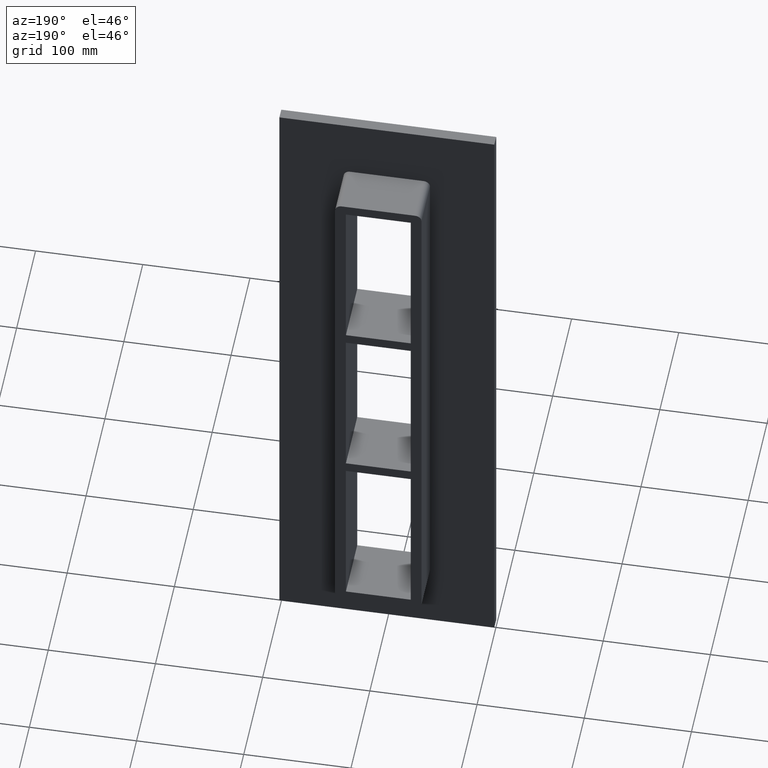
[diagram: clean part render]
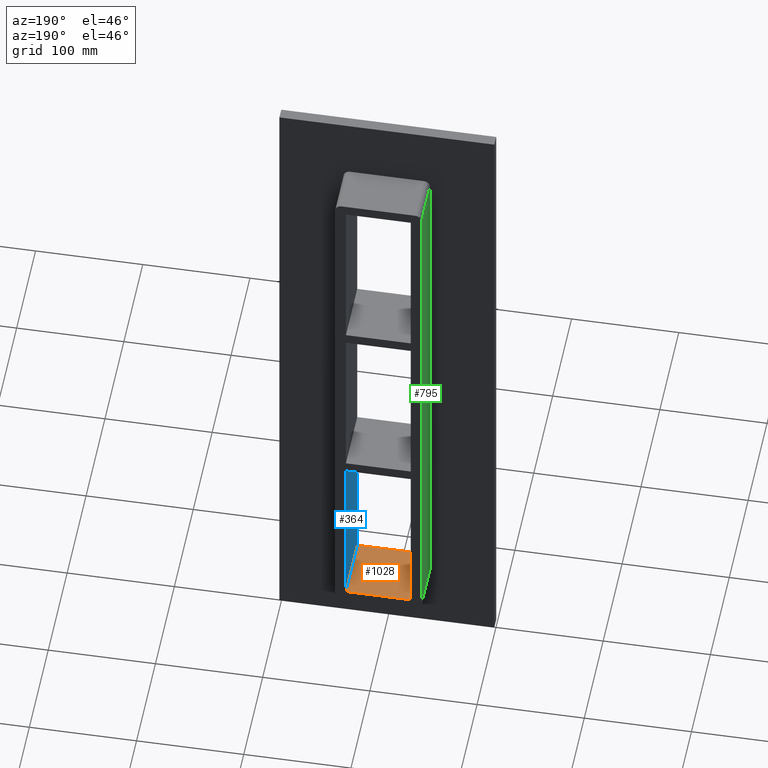
[diagram: same view with three faces highlighted in distinct colors, each labeled with its STEP entity id]
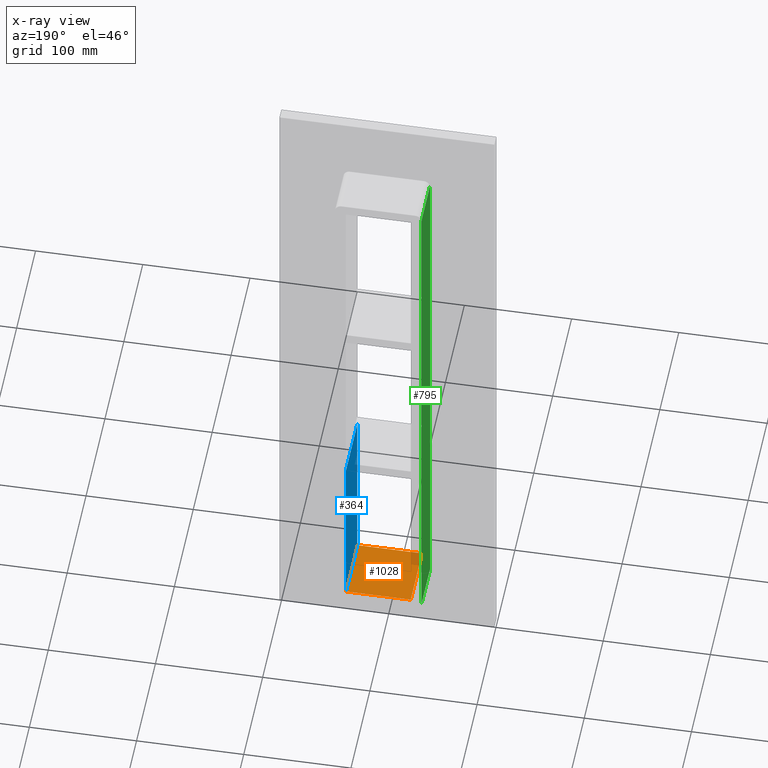
[diagram: x-ray of the same camera — body ghosted, the three highlighted faces saturated]
A machine part, auxiliary view with three faces highlighted in distinct colors.
The next image is the same camera in x-ray (body ghosted, the three faces saturated) — at least one of them is partly hidden behind the body in this view.
Their STEP definitions:

[orange] entity #1028 — the highlighted planar face has unit normal (0, 0, -1).
#340=CARTESIAN_POINT('',(30.249999999999986,55.0,-249.24999999999997));
#341=VERTEX_POINT('',#340);
#348=CARTESIAN_POINT('',(30.249999999999986,-5.0,-249.24999999999997));
#349=VERTEX_POINT('',#348);
#350=CARTESIAN_POINT('',(30.249999999999986,55.0,-249.24999999999997));
#351=DIRECTION('',(0.0,-1.0,0.0));
#352=VECTOR('',#351,60.0);
#353=LINE('',#350,#352);
#354=EDGE_CURVE('',#341,#349,#353,.T.);
#659=CARTESIAN_POINT('',(-30.250000000000021,-5.0,-249.24999999999997));
#660=VERTEX_POINT('',#659);
#667=CARTESIAN_POINT('',(-30.250000000000021,55.0,-249.24999999999997));
#668=VERTEX_POINT('',#667);
#669=CARTESIAN_POINT('',(-30.250000000000021,-5.0,-249.24999999999997));
#670=DIRECTION('',(0.0,1.0,0.0));
#671=VECTOR('',#670,60.0);
#672=LINE('',#669,#671);
#673=EDGE_CURVE('',#660,#668,#672,.T.);
#1007=CARTESIAN_POINT('',(30.249999999999986,0.0,-249.24999999999997));
#1008=DIRECTION('',(0.0,0.0,-1.0));
#1009=DIRECTION('',(-1.0,0.0,0.0));
#1010=AXIS2_PLACEMENT_3D('',#1007,#1008,#1009);
#1011=PLANE('',#1010);
#1012=ORIENTED_EDGE('',*,*,#673,.F.);
#1013=CARTESIAN_POINT('',(30.249999999999986,-5.0,-249.24999999999997));
#1014=DIRECTION('',(-1.0,0.0,0.0));
#1015=VECTOR('',#1014,60.500000000000007);
#1016=LINE('',#1013,#1015);
#1017=EDGE_CURVE('',#349,#660,#1016,.T.);
#1018=ORIENTED_EDGE('',*,*,#1017,.F.);
#1019=ORIENTED_EDGE('',*,*,#354,.F.);
#1020=CARTESIAN_POINT('',(-30.250000000000021,55.0,-249.24999999999997));
#1021=DIRECTION('',(1.0,0.0,0.0));
#1022=VECTOR('',#1021,60.500000000000007);
#1023=LINE('',#1020,#1022);
#1024=EDGE_CURVE('',#668,#341,#1023,.T.);
#1025=ORIENTED_EDGE('',*,*,#1024,.F.);
#1026=EDGE_LOOP('',(#1012,#1018,#1019,#1025));
#1027=FACE_OUTER_BOUND('',#1026,.T.);
#1028=ADVANCED_FACE('',(#1027),#1011,.F.);

[blue] entity #364 — the highlighted planar face has unit normal (1, 0, 0).
#246=CARTESIAN_POINT('',(30.249999999999986,-5.0,-89.749999999999943));
#247=VERTEX_POINT('',#246);
#264=CARTESIAN_POINT('',(30.249999999999986,55.0,-89.749999999999943));
#265=VERTEX_POINT('',#264);
#272=CARTESIAN_POINT('',(30.249999999999986,-5.0,-89.749999999999943));
#273=DIRECTION('',(0.0,1.0,0.0));
#274=VECTOR('',#273,60.0);
#275=LINE('',#272,#274);
#276=EDGE_CURVE('',#247,#265,#275,.T.);
#334=CARTESIAN_POINT('',(30.249999999999986,0.0,249.25000000000006));
#335=DIRECTION('',(1.0,0.0,0.0));
#336=DIRECTION('',(0.0,0.0,-1.0));
#337=AXIS2_PLACEMENT_3D('',#334,#335,#336);
#338=PLANE('',#337);
#339=ORIENTED_EDGE('',*,*,#276,.T.);
#340=CARTESIAN_POINT('',(30.249999999999986,55.0,-249.24999999999997));
#341=VERTEX_POINT('',#340);
#342=CARTESIAN_POINT('',(30.249999999999986,55.0,-249.24999999999994));
#343=DIRECTION('',(0.0,0.0,1.0));
#344=VECTOR('',#343,159.5);
#345=LINE('',#342,#344);
#346=EDGE_CURVE('',#341,#265,#345,.T.);
#347=ORIENTED_EDGE('',*,*,#346,.F.);
#348=CARTESIAN_POINT('',(30.249999999999986,-5.0,-249.24999999999997));
#349=VERTEX_POINT('',#348);
#350=CARTESIAN_POINT('',(30.249999999999986,55.0,-249.24999999999997));
#351=DIRECTION('',(0.0,-1.0,0.0));
#352=VECTOR('',#351,60.0);
#353=LINE('',#350,#352);
#354=EDGE_CURVE('',#341,#349,#353,.T.);
#355=ORIENTED_EDGE('',*,*,#354,.T.);
#356=CARTESIAN_POINT('',(30.249999999999986,-5.0,-89.749999999999943));
#357=DIRECTION('',(0.0,0.0,-1.0));
#358=VECTOR('',#357,159.5);
#359=LINE('',#356,#358);
#360=EDGE_CURVE('',#247,#349,#359,.T.);
#361=ORIENTED_EDGE('',*,*,#360,.F.);
#362=EDGE_LOOP('',(#339,#347,#355,#361));
#363=FACE_OUTER_BOUND('',#362,.T.);
#364=ADVANCED_FACE('',(#363),#338,.F.);

[green] entity #795 — the highlighted planar face has unit normal (-1, 0, 0).
#423=CARTESIAN_POINT('',(-40.250000000000021,10.0,253.25000000000003));
#424=VERTEX_POINT('',#423);
#432=CARTESIAN_POINT('',(-40.250000000000021,10.0,-253.24999999999989));
#433=VERTEX_POINT('',#432);
#434=CARTESIAN_POINT('',(-40.250000000000021,10.0,-253.24999999999989));
#435=DIRECTION('',(0.0,0.0,1.0));
#436=VECTOR('',#435,506.49999999999994);
#437=LINE('',#434,#436);
#438=EDGE_CURVE('',#433,#424,#437,.T.);
#722=CARTESIAN_POINT('',(-40.250000000000021,55.0,-253.24999999999989));
#723=VERTEX_POINT('',#722);
#724=CARTESIAN_POINT('',(-40.250000000000021,10.0,-253.24999999999989));
#725=DIRECTION('',(0.0,1.0,0.0));
#726=VECTOR('',#725,45.0);
#727=LINE('',#724,#726);
#728=EDGE_CURVE('',#433,#723,#727,.T.);
#772=CARTESIAN_POINT('',(-40.250000000000021,0.0,-253.24999999999989));
#773=DIRECTION('',(-1.0,0.0,0.0));
#774=DIRECTION('',(0.0,0.0,1.0));
#775=AXIS2_PLACEMENT_3D('',#772,#773,#774);
#776=PLANE('',#775);
#777=ORIENTED_EDGE('',*,*,#438,.T.);
#778=CARTESIAN_POINT('',(-40.250000000000021,55.0,253.25000000000003));
#779=VERTEX_POINT('',#778);
#780=CARTESIAN_POINT('',(-40.250000000000021,10.0,253.25000000000003));
#781=DIRECTION('',(0.0,1.0,0.0));
#782=VECTOR('',#781,45.0);
#783=LINE('',#780,#782);
#784=EDGE_CURVE('',#424,#779,#783,.T.);
#785=ORIENTED_EDGE('',*,*,#784,.T.);
#786=CARTESIAN_POINT('',(-40.250000000000021,55.0,-253.24999999999989));
#787=DIRECTION('',(0.0,0.0,1.0));
#788=VECTOR('',#787,506.49999999999989);
#789=LINE('',#786,#788);
#790=EDGE_CURVE('',#723,#779,#789,.T.);
#791=ORIENTED_EDGE('',*,*,#790,.F.);
#792=ORIENTED_EDGE('',*,*,#728,.F.);
#793=EDGE_LOOP('',(#777,#785,#791,#792));
#794=FACE_OUTER_BOUND('',#793,.T.);
#795=ADVANCED_FACE('',(#794),#776,.T.);